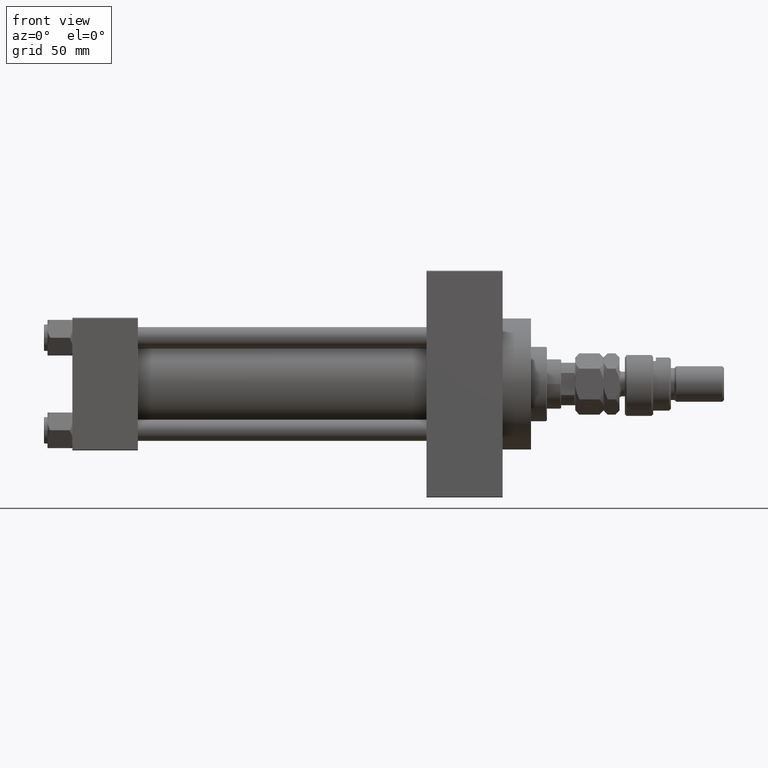
[diagram: clean part render]
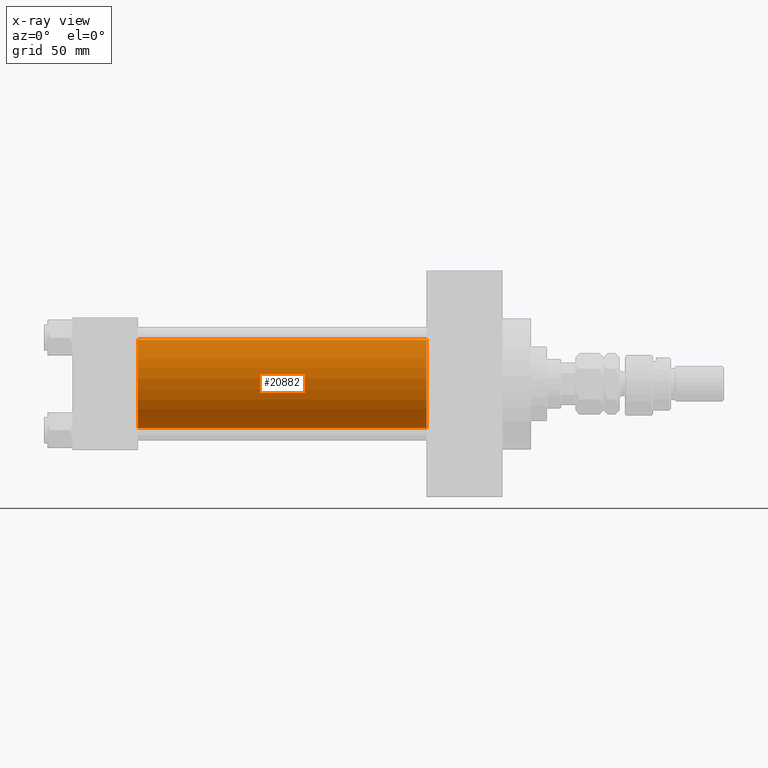
[diagram: x-ray — body ghosted, one internal face saturated and labeled with its STEP entity id]
A machine part, front view, then the same camera in x-ray: the body is ghosted and one INTERNAL B-rep face — a face not visible from any outside direction — is saturated and labeled: STEP entity #20882.
In plain terms, the highlighted cylindrical surface (partial cylindrical patch) has radius 25 mm, axis along (-1, -0, -0).
Its self-contained STEP definition (entity closure, byte-faithful):
#9 = DIRECTION ( 'NONE',  ( 0.000000000000000000, 0.000000000000000000, -1.000000000000000000 ) ) ;
#984 = VECTOR ( 'NONE', #33530, 1000.000000000000000 ) ;
#3770 = VERTEX_POINT ( 'NONE', #39568 ) ;
#6865 = CYLINDRICAL_SURFACE ( 'NONE', #42814, 25.00000000000000000 ) ;
#9651 = EDGE_CURVE ( 'NONE', #15541, #11919, #14771, .T. ) ;
#11676 = CARTESIAN_POINT ( 'NONE',  ( 200.0000000000000000, -2.602085213965210642E-15, 0.000000000000000000 ) ) ;
#11919 = VERTEX_POINT ( 'NONE', #25404 ) ;
#12267 = EDGE_CURVE ( 'NONE', #28266, #3770, #24573, .T. ) ;
#14771 = LINE ( 'NONE', #26713, #26467 ) ;
#15541 = VERTEX_POINT ( 'NONE', #37948 ) ;
#20882 = ADVANCED_FACE ( 'NONE', ( #35738 ), #6865, .F. ) ;
#22351 = EDGE_LOOP ( 'NONE', ( #38585, #39604, #49169, #49976 ) ) ;
#22781 = DIRECTION ( 'NONE',  ( -1.000000000000000000, -0.000000000000000000, -0.000000000000000000 ) ) ;
#24573 = LINE ( 'NONE', #36994, #984 ) ;
#25404 = CARTESIAN_POINT ( 'NONE',  ( 37.00000000000000000, 4.595317839031724996E-16, -25.00000000000000000 ) ) ;
#26467 = VECTOR ( 'NONE', #42849, 1000.000000000000000 ) ;
#26713 = CARTESIAN_POINT ( 'NONE',  ( 200.0000000000000000, 4.595317839031724996E-16, -25.00000000000000000 ) ) ;
#28266 = VERTEX_POINT ( 'NONE', #30677 ) ;
#28597 = CIRCLE ( 'NONE', #45511, 25.00000000000000000 ) ;
#30677 = CARTESIAN_POINT ( 'NONE',  ( 200.0000000000000000, -2.602085213965210642E-15, 25.00000000000000000 ) ) ;
#31485 = DIRECTION ( 'NONE',  ( 0.000000000000000000, 0.000000000000000000, 1.000000000000000000 ) ) ;
#33530 = DIRECTION ( 'NONE',  ( -1.000000000000000000, -0.000000000000000000, -0.000000000000000000 ) ) ;
#34145 = DIRECTION ( 'NONE',  ( 0.000000000000000000, 0.000000000000000000, -1.000000000000000000 ) ) ;
#35738 = FACE_OUTER_BOUND ( 'NONE', #22351, .T. ) ;
#36994 = CARTESIAN_POINT ( 'NONE',  ( 200.0000000000000000, -2.602085213965210642E-15, 25.00000000000000000 ) ) ;
#37602 = CARTESIAN_POINT ( 'NONE',  ( 37.00000000000000000, -2.602085213965210642E-15, 0.000000000000000000 ) ) ;
#37948 = CARTESIAN_POINT ( 'NONE',  ( 200.0000000000000000, 4.595317839031724996E-16, -25.00000000000000000 ) ) ;
#38585 = ORIENTED_EDGE ( 'NONE', *, *, #40323, .T. ) ;
#39568 = CARTESIAN_POINT ( 'NONE',  ( 37.00000000000000000, -2.602085213965210642E-15, 25.00000000000000000 ) ) ;
#39604 = ORIENTED_EDGE ( 'NONE', *, *, #9651, .T. ) ;
#39962 = CARTESIAN_POINT ( 'NONE',  ( 200.0000000000000000, -2.602085213965210642E-15, 0.000000000000000000 ) ) ;
#40009 = DIRECTION ( 'NONE',  ( 1.000000000000000000, 0.000000000000000000, 0.000000000000000000 ) ) ;
#40323 = EDGE_CURVE ( 'NONE', #28266, #15541, #28597, .T. ) ;
#42814 = AXIS2_PLACEMENT_3D ( 'NONE', #39962, #22781, #31485 ) ;
#42849 = DIRECTION ( 'NONE',  ( -1.000000000000000000, -0.000000000000000000, -0.000000000000000000 ) ) ;
#44251 = EDGE_CURVE ( 'NONE', #3770, #11919, #50726, .T. ) ;
#45511 = AXIS2_PLACEMENT_3D ( 'NONE', #11676, #40009, #9 ) ;
#45666 = AXIS2_PLACEMENT_3D ( 'NONE', #37602, #46582, #34145 ) ;
#46582 = DIRECTION ( 'NONE',  ( 1.000000000000000000, 0.000000000000000000, 0.000000000000000000 ) ) ;
#49169 = ORIENTED_EDGE ( 'NONE', *, *, #44251, .F. ) ;
#49976 = ORIENTED_EDGE ( 'NONE', *, *, #12267, .F. ) ;
#50726 = CIRCLE ( 'NONE', #45666, 25.00000000000000000 ) ;